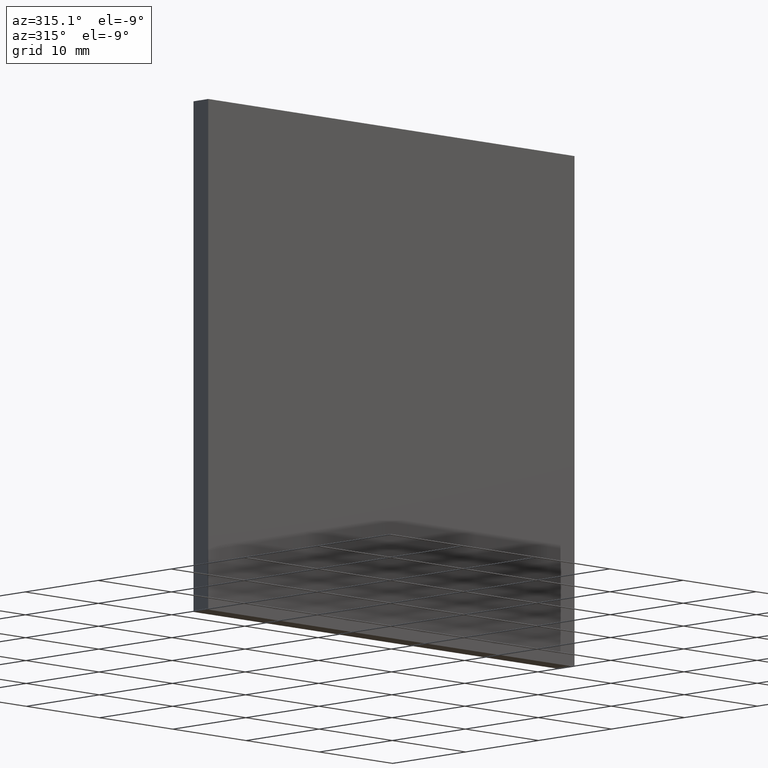
[diagram: clean part render]
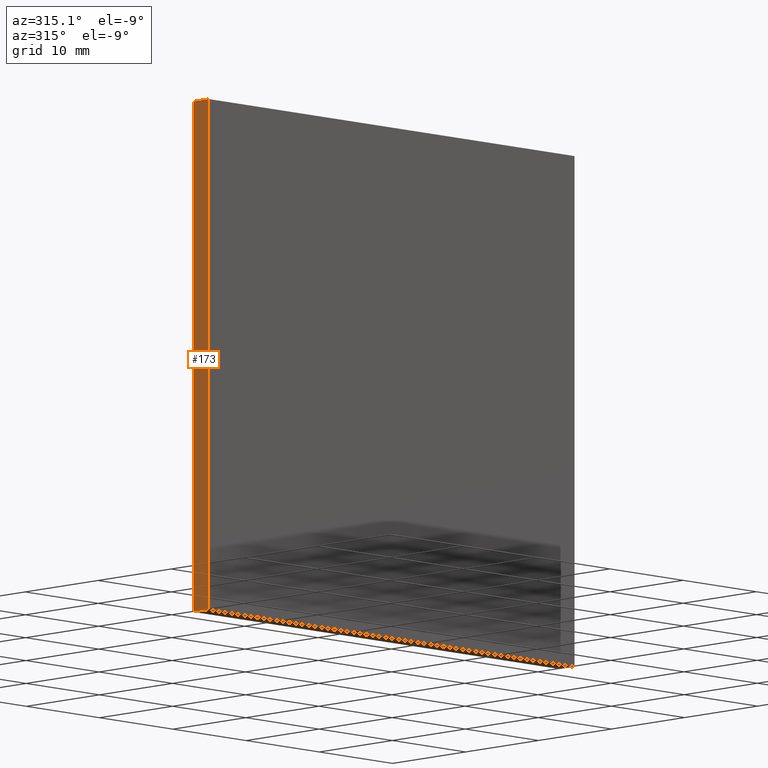
[diagram: same view with one face highlighted and labeled with its STEP entity id]
A machine part, auxiliary view. The second image highlights one B-rep face of the part: STEP entity #173.
In plain terms, the highlighted planar face has unit normal (1, -0, 0).
Its self-contained STEP definition (entity closure, byte-faithful):
#5 = DIRECTION ( 'NONE',  ( -0.0000000000000000000, -0.0000000000000000000, 1.000000000000000000 ) ) ;
#16 = CARTESIAN_POINT ( 'NONE',  ( -25.00000000000000400, 0.0000000000000000000, 25.00000000000000000 ) ) ;
#18 = VECTOR ( 'NONE', #73, 1000.000000000000000 ) ;
#20 = AXIS2_PLACEMENT_3D ( 'NONE', #69, #104, #106 ) ;
#30 = EDGE_CURVE ( 'NONE', #200, #146, #111, .T. ) ;
#35 = LINE ( 'NONE', #161, #83 ) ;
#45 = ORIENTED_EDGE ( 'NONE', *, *, #165, .F. ) ;
#56 = DIRECTION ( 'NONE',  ( -0.0000000000000000000, -0.0000000000000000000, 1.000000000000000000 ) ) ;
#57 = VERTEX_POINT ( 'NONE', #16 ) ;
#59 = DIRECTION ( 'NONE',  ( -0.0000000000000000000, -1.000000000000000000, -0.0000000000000000000 ) ) ;
#67 = CARTESIAN_POINT ( 'NONE',  ( -25.00000000000000400, 2.029999999999999800, 25.00000000000000000 ) ) ;
#68 = FACE_OUTER_BOUND ( 'NONE', #77, .T. ) ;
#69 = CARTESIAN_POINT ( 'NONE',  ( -25.00000000000000400, 2.029999999999999800, 25.00000000000000000 ) ) ;
#72 = CARTESIAN_POINT ( 'NONE',  ( -25.00000000000000400, 2.029999999999999800, 25.00000000000000000 ) ) ;
#73 = DIRECTION ( 'NONE',  ( -0.0000000000000000000, -1.000000000000000000, -0.0000000000000000000 ) ) ;
#77 = EDGE_LOOP ( 'NONE', ( #131, #45, #99, #187 ) ) ;
#83 = VECTOR ( 'NONE', #59, 1000.000000000000000 ) ;
#86 = CARTESIAN_POINT ( 'NONE',  ( -25.00000000000000400, 2.029999999999999800, -25.00000000000000000 ) ) ;
#87 = CARTESIAN_POINT ( 'NONE',  ( -25.00000000000000400, 0.0000000000000000000, 25.00000000000000000 ) ) ;
#93 = EDGE_CURVE ( 'NONE', #97, #57, #101, .T. ) ;
#97 = VERTEX_POINT ( 'NONE', #202 ) ;
#99 = ORIENTED_EDGE ( 'NONE', *, *, #30, .F. ) ;
#101 = LINE ( 'NONE', #87, #148 ) ;
#104 = DIRECTION ( 'NONE',  ( 1.000000000000000000, -0.0000000000000000000, 0.0000000000000000000 ) ) ;
#106 = DIRECTION ( 'NONE',  ( 0.0000000000000000000, 0.0000000000000000000, -1.000000000000000000 ) ) ;
#111 = LINE ( 'NONE', #67, #153 ) ;
#117 = LINE ( 'NONE', #142, #18 ) ;
#131 = ORIENTED_EDGE ( 'NONE', *, *, #93, .T. ) ;
#140 = PLANE ( 'NONE',  #20 ) ;
#142 = CARTESIAN_POINT ( 'NONE',  ( -25.00000000000000400, 2.029999999999999800, -25.00000000000000000 ) ) ;
#146 = VERTEX_POINT ( 'NONE', #72 ) ;
#148 = VECTOR ( 'NONE', #56, 1000.000000000000000 ) ;
#150 = EDGE_CURVE ( 'NONE', #200, #97, #117, .T. ) ;
#153 = VECTOR ( 'NONE', #5, 1000.000000000000000 ) ;
#161 = CARTESIAN_POINT ( 'NONE',  ( -25.00000000000000400, 2.029999999999999800, 25.00000000000000000 ) ) ;
#165 = EDGE_CURVE ( 'NONE', #146, #57, #35, .T. ) ;
#173 = ADVANCED_FACE ( 'NONE', ( #68 ), #140, .F. ) ;
#187 = ORIENTED_EDGE ( 'NONE', *, *, #150, .T. ) ;
#200 = VERTEX_POINT ( 'NONE', #86 ) ;
#202 = CARTESIAN_POINT ( 'NONE',  ( -25.00000000000000400, 0.0000000000000000000, -25.00000000000000000 ) ) ;